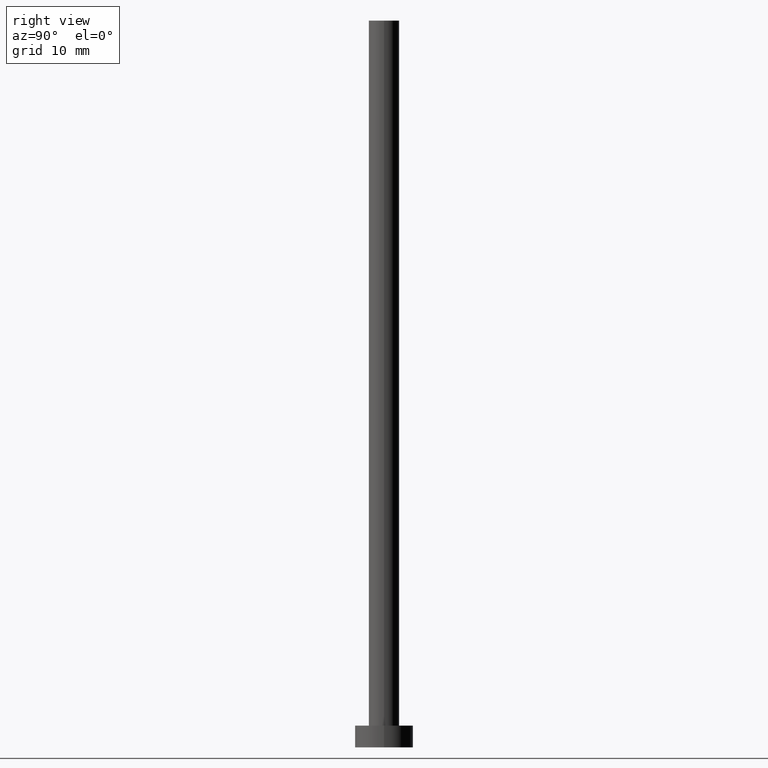
[diagram: clean part render]
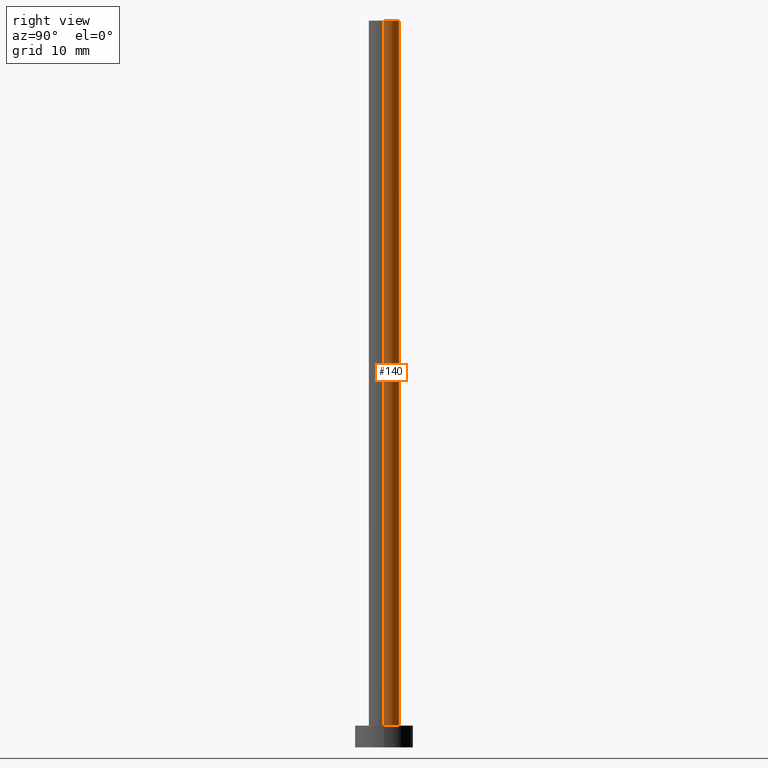
[diagram: same view with one face highlighted and labeled with its STEP entity id]
A machine part, right view. The second image highlights one B-rep face of the part: STEP entity #140.
In plain terms, the highlighted cylindrical surface (edge-blend (fillet) strip) has radius 2.1 mm, axis along (-0, -0, -1).
Its self-contained STEP definition (entity closure, byte-faithful):
#1 = CARTESIAN_POINT ( 'NONE',  ( 0.000000000000000000, 0.000000000000000000, 100.0000000000000000 ) ) ;
#2 = CARTESIAN_POINT ( 'NONE',  ( -2.100000000000000089, 0.000000000000000000, 100.0000000000000000 ) ) ;
#3 = ORIENTED_EDGE ( 'NONE', *, *, #5, .T. ) ;
#5 = EDGE_CURVE ( 'NONE', #100, #9, #98, .T. ) ;
#6 = CARTESIAN_POINT ( 'NONE',  ( 0.000000000000000000, 0.000000000000000000, 100.0000000000000000 ) ) ;
#9 = VERTEX_POINT ( 'NONE', #62 ) ;
#16 = EDGE_CURVE ( 'NONE', #225, #96, #101, .T. ) ;
#17 = DIRECTION ( 'NONE',  ( -1.000000000000000000, 0.000000000000000000, 0.000000000000000000 ) ) ;
#20 = CARTESIAN_POINT ( 'NONE',  ( -2.100000000000000089, 0.000000000000000000, 3.000000000000000000 ) ) ;
#26 = DIRECTION ( 'NONE',  ( 1.000000000000000000, 0.000000000000000000, 0.000000000000000000 ) ) ;
#38 = CARTESIAN_POINT ( 'NONE',  ( 2.100000000000000089, 2.571758278209441464E-16, 100.0000000000000000 ) ) ;
#48 = CARTESIAN_POINT ( 'NONE',  ( 2.100000000000000089, 2.571758278209441464E-16, 100.0000000000000000 ) ) ;
#49 = VECTOR ( 'NONE', #132, 1000.000000000000000 ) ;
#62 = CARTESIAN_POINT ( 'NONE',  ( 2.100000000000000089, 2.571758278209441464E-16, 3.000000000000000000 ) ) ;
#64 = ORIENTED_EDGE ( 'NONE', *, *, #161, .F. ) ;
#70 = VECTOR ( 'NONE', #121, 1000.000000000000000 ) ;
#96 = VERTEX_POINT ( 'NONE', #20 ) ;
#97 = DIRECTION ( 'NONE',  ( 0.000000000000000000, 0.000000000000000000, 1.000000000000000000 ) ) ;
#98 = LINE ( 'NONE', #48, #70 ) ;
#100 = VERTEX_POINT ( 'NONE', #38 ) ;
#101 = LINE ( 'NONE', #179, #49 ) ;
#103 = CIRCLE ( 'NONE', #254, 2.100000000000000089 ) ;
#121 = DIRECTION ( 'NONE',  ( -0.000000000000000000, -0.000000000000000000, -1.000000000000000000 ) ) ;
#132 = DIRECTION ( 'NONE',  ( -0.000000000000000000, -0.000000000000000000, -1.000000000000000000 ) ) ;
#134 = AXIS2_PLACEMENT_3D ( 'NONE', #238, #97, #26 ) ;
#140 = ADVANCED_FACE ( 'NONE', ( #191 ), #148, .T. ) ;
#148 = CYLINDRICAL_SURFACE ( 'NONE', #211, 2.100000000000000089 ) ;
#155 = DIRECTION ( 'NONE',  ( 1.000000000000000000, 0.000000000000000000, 0.000000000000000000 ) ) ;
#160 = CIRCLE ( 'NONE', #134, 2.100000000000000089 ) ;
#161 = EDGE_CURVE ( 'NONE', #100, #225, #103, .T. ) ;
#173 = ORIENTED_EDGE ( 'NONE', *, *, #196, .T. ) ;
#179 = CARTESIAN_POINT ( 'NONE',  ( -2.100000000000000089, 0.000000000000000000, 100.0000000000000000 ) ) ;
#191 = FACE_OUTER_BOUND ( 'NONE', #226, .T. ) ;
#196 = EDGE_CURVE ( 'NONE', #9, #96, #160, .T. ) ;
#205 = ORIENTED_EDGE ( 'NONE', *, *, #16, .F. ) ;
#211 = AXIS2_PLACEMENT_3D ( 'NONE', #1, #232, #17 ) ;
#218 = DIRECTION ( 'NONE',  ( 0.000000000000000000, 0.000000000000000000, 1.000000000000000000 ) ) ;
#225 = VERTEX_POINT ( 'NONE', #2 ) ;
#226 = EDGE_LOOP ( 'NONE', ( #64, #3, #173, #205 ) ) ;
#232 = DIRECTION ( 'NONE',  ( -0.000000000000000000, -0.000000000000000000, -1.000000000000000000 ) ) ;
#238 = CARTESIAN_POINT ( 'NONE',  ( 0.000000000000000000, 0.000000000000000000, 3.000000000000000000 ) ) ;
#254 = AXIS2_PLACEMENT_3D ( 'NONE', #6, #218, #155 ) ;